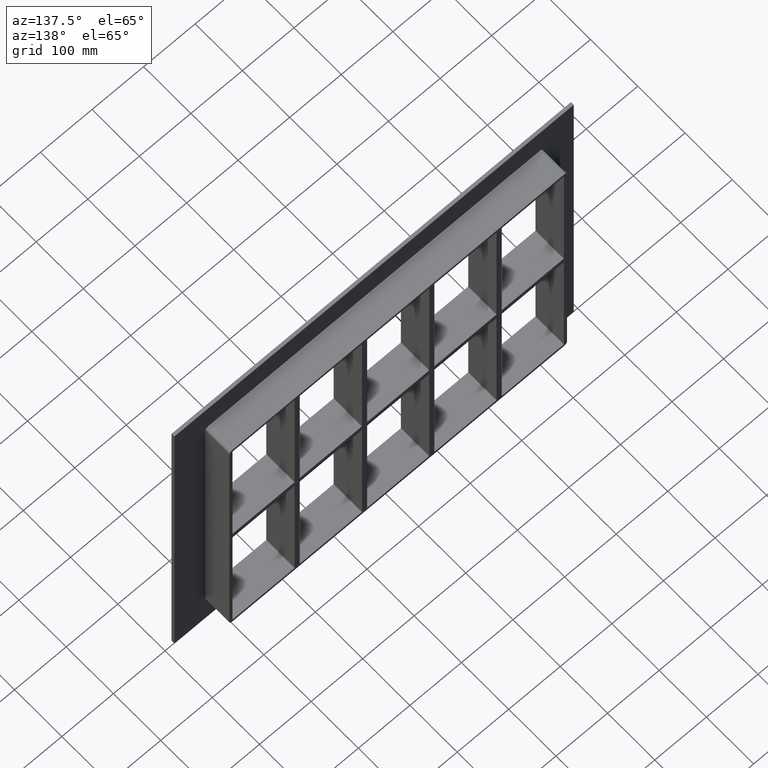
[diagram: clean part render]
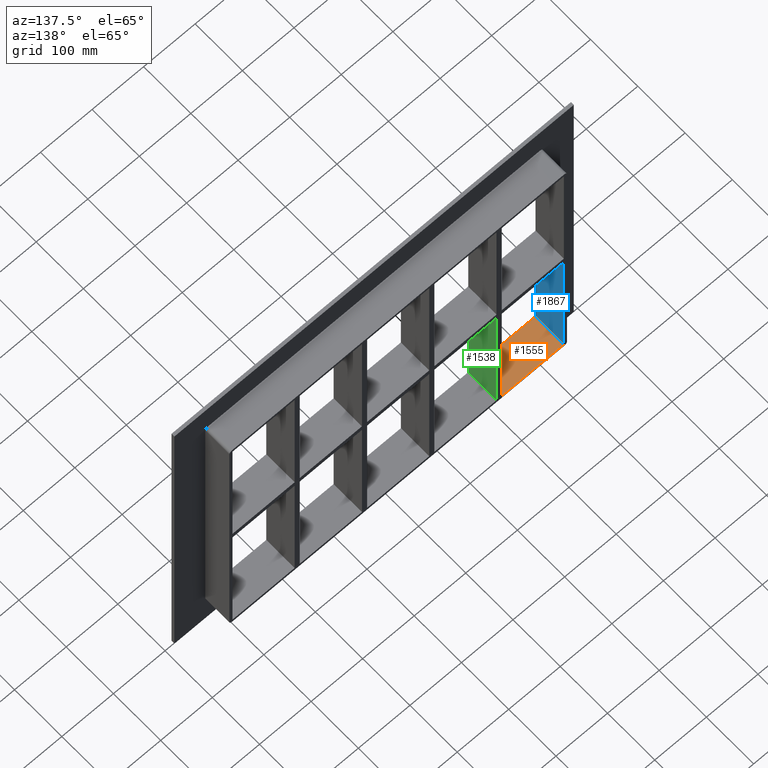
[diagram: same view with three faces highlighted in distinct colors, each labeled with its STEP entity id]
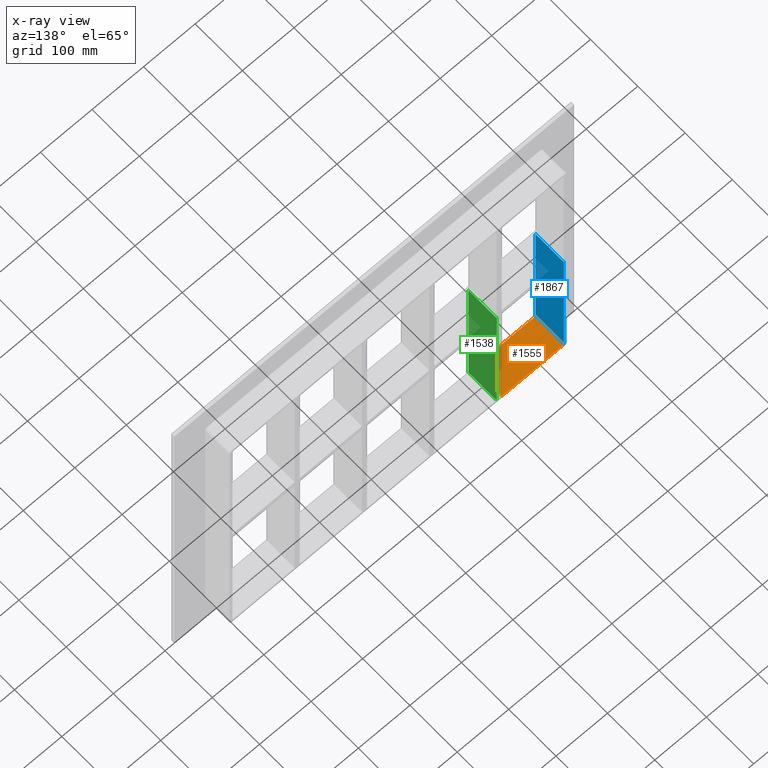
[diagram: x-ray of the same camera — body ghosted, the three highlighted faces saturated]
A machine part, auxiliary view with three faces highlighted in distinct colors.
The next image is the same camera in x-ray (body ghosted, the three faces saturated) — at least one of them is partly hidden behind the body in this view.
Their STEP definitions:

[orange] entity #1555 — the highlighted planar face has unit normal (0, 0, -1).
#913=CARTESIAN_POINT('',(-200.75000000000131,-3.0,-284.00000000000006));
#914=VERTEX_POINT('',#913);
#921=CARTESIAN_POINT('',(-321.25,-3.0,-284.00000000000006));
#922=VERTEX_POINT('',#921);
#923=CARTESIAN_POINT('',(-200.75000000000131,-3.0,-284.00000000000006));
#924=DIRECTION('',(-1.0,0.0,0.0));
#925=VECTOR('',#924,120.49999999999869);
#926=LINE('',#923,#925);
#927=EDGE_CURVE('',#914,#922,#926,.T.);
#1210=CARTESIAN_POINT('',(-321.25,57.0,-284.00000000000006));
#1211=VERTEX_POINT('',#1210);
#1218=CARTESIAN_POINT('',(-200.75000000000131,57.0,-284.00000000000006));
#1219=VERTEX_POINT('',#1218);
#1220=CARTESIAN_POINT('',(-321.25,57.0,-284.00000000000006));
#1221=DIRECTION('',(1.0,0.0,0.0));
#1222=VECTOR('',#1221,120.49999999999869);
#1223=LINE('',#1220,#1222);
#1224=EDGE_CURVE('',#1211,#1219,#1223,.T.);
#1517=CARTESIAN_POINT('',(-200.75000000000131,-3.0,-284.00000000000006));
#1518=DIRECTION('',(0.0,1.0,0.0));
#1519=VECTOR('',#1518,60.000000000000007);
#1520=LINE('',#1517,#1519);
#1521=EDGE_CURVE('',#914,#1219,#1520,.T.);
#1539=CARTESIAN_POINT('',(321.25000000000011,0.0,-284.00000000000006));
#1540=DIRECTION('',(0.0,0.0,-1.0));
#1541=DIRECTION('',(-1.0,0.0,0.0));
#1542=AXIS2_PLACEMENT_3D('',#1539,#1540,#1541);
#1543=PLANE('',#1542);
#1544=ORIENTED_EDGE('',*,*,#1521,.T.);
#1545=ORIENTED_EDGE('',*,*,#1224,.F.);
#1546=CARTESIAN_POINT('',(-321.25,-3.0,-284.00000000000006));
#1547=DIRECTION('',(0.0,1.0,0.0));
#1548=VECTOR('',#1547,60.0);
#1549=LINE('',#1546,#1548);
#1550=EDGE_CURVE('',#922,#1211,#1549,.T.);
#1551=ORIENTED_EDGE('',*,*,#1550,.F.);
#1552=ORIENTED_EDGE('',*,*,#927,.F.);
#1553=EDGE_LOOP('',(#1544,#1545,#1551,#1552));
#1554=FACE_OUTER_BOUND('',#1553,.T.);
#1555=ADVANCED_FACE('',(#1554),#1543,.F.);

[blue] entity #1867 — the highlighted planar face has unit normal (-1, 0, 0).
#905=CARTESIAN_POINT('',(-321.24999999999972,-3.0,-6.000000000009322));
#906=VERTEX_POINT('',#905);
#921=CARTESIAN_POINT('',(-321.25,-3.0,-284.00000000000006));
#922=VERTEX_POINT('',#921);
#929=CARTESIAN_POINT('',(-321.25,-3.0,-284.00000000000006));
#930=DIRECTION('',(0.0,0.0,1.0));
#931=VECTOR('',#930,277.99999999999073);
#932=LINE('',#929,#931);
#933=EDGE_CURVE('',#922,#906,#932,.T.);
#1208=CARTESIAN_POINT('',(-321.24999999999972,57.0,-6.000000000009322));
#1209=VERTEX_POINT('',#1208);
#1210=CARTESIAN_POINT('',(-321.25,57.0,-284.00000000000006));
#1211=VERTEX_POINT('',#1210);
#1212=CARTESIAN_POINT('',(-321.25,57.0,-6.000000000009322));
#1213=DIRECTION('',(0.0,0.0,-1.0));
#1214=VECTOR('',#1213,277.99999999999073);
#1215=LINE('',#1212,#1214);
#1216=EDGE_CURVE('',#1209,#1211,#1215,.T.);
#1396=CARTESIAN_POINT('',(-321.25,57.000000000000007,-6.000000000009322));
#1397=DIRECTION('',(0.0,-1.0,0.0));
#1398=VECTOR('',#1397,60.000000000000007);
#1399=LINE('',#1396,#1398);
#1400=EDGE_CURVE('',#1209,#906,#1399,.T.);
#1546=CARTESIAN_POINT('',(-321.25,-3.0,-284.00000000000006));
#1547=DIRECTION('',(0.0,1.0,0.0));
#1548=VECTOR('',#1547,60.0);
#1549=LINE('',#1546,#1548);
#1550=EDGE_CURVE('',#922,#1211,#1549,.T.);
#1856=CARTESIAN_POINT('',(-321.25,0.0,-284.00000000000006));
#1857=DIRECTION('',(-1.0,0.0,0.0));
#1858=DIRECTION('',(0.0,0.0,1.0));
#1859=AXIS2_PLACEMENT_3D('',#1856,#1857,#1858);
#1860=PLANE('',#1859);
#1861=ORIENTED_EDGE('',*,*,#1400,.T.);
#1862=ORIENTED_EDGE('',*,*,#933,.F.);
#1863=ORIENTED_EDGE('',*,*,#1550,.T.);
#1864=ORIENTED_EDGE('',*,*,#1216,.F.);
#1865=EDGE_LOOP('',(#1861,#1862,#1863,#1864));
#1866=FACE_OUTER_BOUND('',#1865,.T.);
#1867=ADVANCED_FACE('',(#1866),#1860,.F.);

[green] entity #1538 — the highlighted planar face has unit normal (1, 0, 0).
#554=CARTESIAN_POINT('',(-190.75000000000728,57.0,-283.99999999998431));
#555=VERTEX_POINT('',#554);
#562=CARTESIAN_POINT('',(-190.75000000000728,-3.0,-283.99999999998431));
#563=VERTEX_POINT('',#562);
#564=CARTESIAN_POINT('',(-190.75000000000728,57.000000000000007,-284.00000000000006));
#565=DIRECTION('',(0.0,-1.0,0.0));
#566=VECTOR('',#565,60.000000000000007);
#567=LINE('',#564,#566);
#568=EDGE_CURVE('',#555,#563,#567,.T.);
#784=CARTESIAN_POINT('',(-190.75000000000728,-3.0,-6.000000000009308));
#785=VERTEX_POINT('',#784);
#786=CARTESIAN_POINT('',(-190.75000000000728,-3.0,-6.000000000009322));
#787=DIRECTION('',(0.0,0.0,-1.0));
#788=VECTOR('',#787,277.99999999997493);
#789=LINE('',#786,#788);
#790=EDGE_CURVE('',#785,#563,#789,.T.);
#969=CARTESIAN_POINT('',(-190.75000000000728,57.0,-6.000000000009308));
#970=VERTEX_POINT('',#969);
#971=CARTESIAN_POINT('',(-190.75000000000728,57.0,-6.000000000009315));
#972=DIRECTION('',(0.0,-1.0,0.0));
#973=VECTOR('',#972,60.0);
#974=LINE('',#971,#973);
#975=EDGE_CURVE('',#970,#785,#974,.T.);
#1165=CARTESIAN_POINT('',(-190.75000000000728,57.0,-6.000000000009322));
#1166=DIRECTION('',(0.0,0.0,-1.0));
#1167=VECTOR('',#1166,277.99999999997493);
#1168=LINE('',#1165,#1167);
#1169=EDGE_CURVE('',#970,#555,#1168,.T.);
#1527=CARTESIAN_POINT('',(-190.75000000000728,-3.0,284.00000000000006));
#1528=DIRECTION('',(1.0,0.0,0.0));
#1529=DIRECTION('',(0.0,0.0,-1.0));
#1530=AXIS2_PLACEMENT_3D('',#1527,#1528,#1529);
#1531=PLANE('',#1530);
#1532=ORIENTED_EDGE('',*,*,#975,.T.);
#1533=ORIENTED_EDGE('',*,*,#790,.T.);
#1534=ORIENTED_EDGE('',*,*,#568,.F.);
#1535=ORIENTED_EDGE('',*,*,#1169,.F.);
#1536=EDGE_LOOP('',(#1532,#1533,#1534,#1535));
#1537=FACE_OUTER_BOUND('',#1536,.T.);
#1538=ADVANCED_FACE('',(#1537),#1531,.T.);